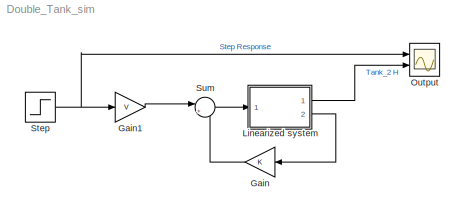
MODEL Double_Tank_sim
KIND model
BLOCK [Gain] Gain
  Gain = K
  Multiplication = Matrix(K*u)
  SID = 8
BLOCK [Gain] Gain1
  Gain = V
  SID = 10
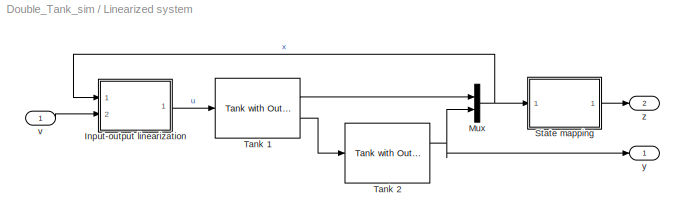
BLOCK [SubSystem] Linearized system
  Ports = [1, 2]
  SID = 11
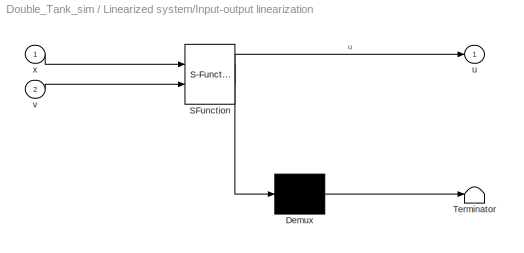
BLOCK [SubSystem] Linearized system/Input-output linearization
  ErrorFcn = Stateflow.Translate.translate
  PermitHierarchicalResolution = ExplicitOnly
  Ports = [2, 1]
  SFBlockType = MATLAB Function
  SID = 13
  TreatAsAtomicUnit = on
BLOCK [Demux] Linearized system/Input-output linearization/ Demux 
  Outputs = 1
  Ports = [1, 1]
  SID = 13::26
BLOCK [S-Function] Linearized system/Input-output linearization/ SFunction 
  EnableBusSupport = on
  FunctionName = sf_sfun
  Parameters = p
  PortCounts = [2 2]
  Ports = [2, 2]
  SFcnIsStateOwnerBlock = off
  SFunctionDeploymentMode = off
  SID = 13::25
  Tag = Stateflow S-Function 2
BLOCK [Terminator] Linearized system/Input-output linearization/ Terminator 
  SID = 13::27
BLOCK [Outport] Linearized system/Input-output linearization/u
  SID = 13::5
BLOCK [Inport] Linearized system/Input-output linearization/v
  Port = 2
  SID = 13::1
BLOCK [Inport] Linearized system/Input-output linearization/x
  SID = 13::28
BLOCK [Mux] Linearized system/Mux
  DisplayOption = bar
  Inputs = 2
  Ports = [2, 1]
  SID = 14
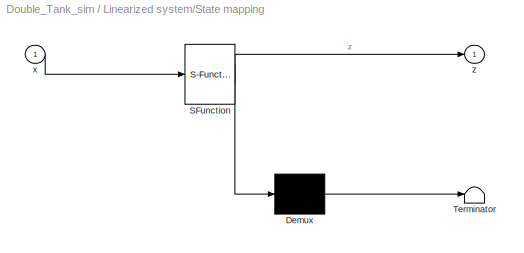
BLOCK [SubSystem] Linearized system/State mapping
  ErrorFcn = Stateflow.Translate.translate
  PermitHierarchicalResolution = ExplicitOnly
  Ports = [1, 1]
  SFBlockType = MATLAB Function
  SID = 15
  TreatAsAtomicUnit = on
BLOCK [Demux] Linearized system/State mapping/ Demux 
  Outputs = 1
  Ports = [1, 1]
  SID = 15::146
BLOCK [S-Function] Linearized system/State mapping/ SFunction 
  EnableBusSupport = on
  FunctionName = sf_sfun
  Parameters = p
  PortCounts = [1 2]
  Ports = [1, 2]
  SFcnIsStateOwnerBlock = off
  SFunctionDeploymentMode = off
  SID = 15::145
  Tag = Stateflow S-Function 1
BLOCK [Terminator] Linearized system/State mapping/ Terminator 
  SID = 15::147
BLOCK [Inport] Linearized system/State mapping/x
  SID = 15::1
BLOCK [Outport] Linearized system/State mapping/z
  SID = 15::5
  VectorParamsAs1DForOutWhenUnconnected = off
BLOCK [Reference] Linearized system/Tank 1  REF=mci_models/Fluid Systems/Tank with Outflow  (lib defined in slx_e9e95a5c75ca)
  Ao = p.Ao
  At = p.At
  Ports = [1, 2]
  RTWMemSecDataConstants = Inherit from model
  RTWMemSecDataInternal = Inherit from model
  RTWMemSecDataParameters = Inherit from model
  RTWMemSecFuncExecute = Inherit from model
  RTWMemSecFuncInitTerm = Inherit from model
  SID = 16
  SourceBlock = mci_models/Fluid Systems/Tank with Outflow
  g = 9.81
  h0 = x_init(1)
  rho = p.rho
  zeta = p.zeta
BLOCK [Reference] Linearized system/Tank 2  REF=mci_models/Fluid Systems/Tank with Outflow  (lib defined in slx_e9e95a5c75ca)
  Ao = p.Ao
  At = p.At
  Ports = [1, 2]
  RTWMemSecDataConstants = Inherit from model
  RTWMemSecDataInternal = Inherit from model
  RTWMemSecDataParameters = Inherit from model
  RTWMemSecFuncExecute = Inherit from model
  RTWMemSecFuncInitTerm = Inherit from model
  SID = 20
  SourceBlock = mci_models/Fluid Systems/Tank with Outflow
  g = 9.81
  h0 = x_init(2)
  rho = p.rho
  zeta = p.zeta
BLOCK [Inport] Linearized system/v
  SID = 12
BLOCK [Outport] Linearized system/y
  SID = 18
BLOCK [Outport] Linearized system/z
  Port = 2
  SID = 19
BLOCK [Scope] Output
  Floating = off
  NumInputPorts = 2
  Ports = [2]
  SID = 3
  ScopeSpecificationString = Simulink.scopes.TimeScopeBlockCfg('CurrentConfiguration', extmgr.ConfigurationSet(extmgr.Configuration('Core','General UI',true),extmgr.Configuration('Core','Source UI',true),extmgr.Configuration('Sources','WiredSimulink',true),extmgr.Configuration('Visuals','Time Domain',true,'SerializedDisplays',{struct('MinYLimReal','0.0375','MaxYLimReal','0.1625','YLabelReal','','MinYLimMag','0.0375','MaxYLimM...<+1400ch>
BLOCK [Step] Step
  After = .1
  Before = .05
  SID = 21
  SampleTime = 0
  Time = 10
BLOCK [Sum] Sum
  Inputs = |+-
  Ports = [2, 1]
  SID = 7
LINE Gain1:1 -> Sum:1
LINE Gain:1 -> Sum:2
LINE Linearized system/Input-output linearization/ Demux :1 -> Linearized system/Input-output linearization/ Terminator :1
LINE Linearized system/Input-output linearization/ SFunction :1 -> Linearized system/Input-output linearization/ Demux :1
LINE Linearized system/Input-output linearization/ SFunction :2 -> Linearized system/Input-output linearization/u:1
LINE Linearized system/Input-output linearization/v:1 -> Linearized system/Input-output linearization/ SFunction :2
LINE Linearized system/Input-output linearization/x:1 -> Linearized system/Input-output linearization/ SFunction :1
LINE Linearized system/Input-output linearization:1 -> Linearized system/Tank 1:1
NET Linearized system/Mux:1 -> Linearized system/Input-output linearization:1, Linearized system/State mapping:1
LINE Linearized system/State mapping/ Demux :1 -> Linearized system/State mapping/ Terminator :1
LINE Linearized system/State mapping/ SFunction :1 -> Linearized system/State mapping/ Demux :1
LINE Linearized system/State mapping/ SFunction :2 -> Linearized system/State mapping/z:1
LINE Linearized system/State mapping/x:1 -> Linearized system/State mapping/ SFunction :1
LINE Linearized system/State mapping:1 -> Linearized system/z:1
LINE Linearized system/Tank 1:1 -> Linearized system/Mux:1
LINE Linearized system/Tank 1:2 -> Linearized system/Tank 2:1
NET Linearized system/Tank 2:1 -> Linearized system/Mux:2, Linearized system/y:1
LINE Linearized system/v:1 -> Linearized system/Input-output linearization:2
LINE Linearized system:1 -> Output:2
LINE Linearized system:2 -> Gain:1
NET Step:1 -> Gain1:1, Output:1
LINE Sum:1 -> Linearized system:1
note: NET lines group one-source signal fan-out (src -> all destinations, sorted); 1:1 wires keep LINE
CHART Linearized system/State mapping states=1 transitions=1
  STATE_LABEL 'eML_blk_kernel()'
CHART Linearized system/Input-output linearization states=1 transitions=1
  STATE_LABEL 'eML_blk_kernel()'
